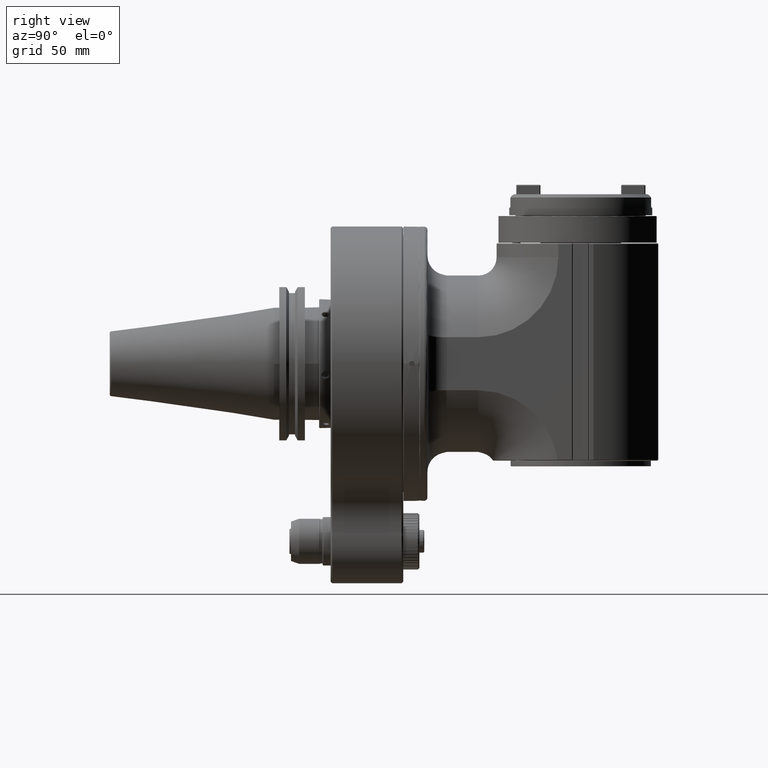
[diagram: clean part render]
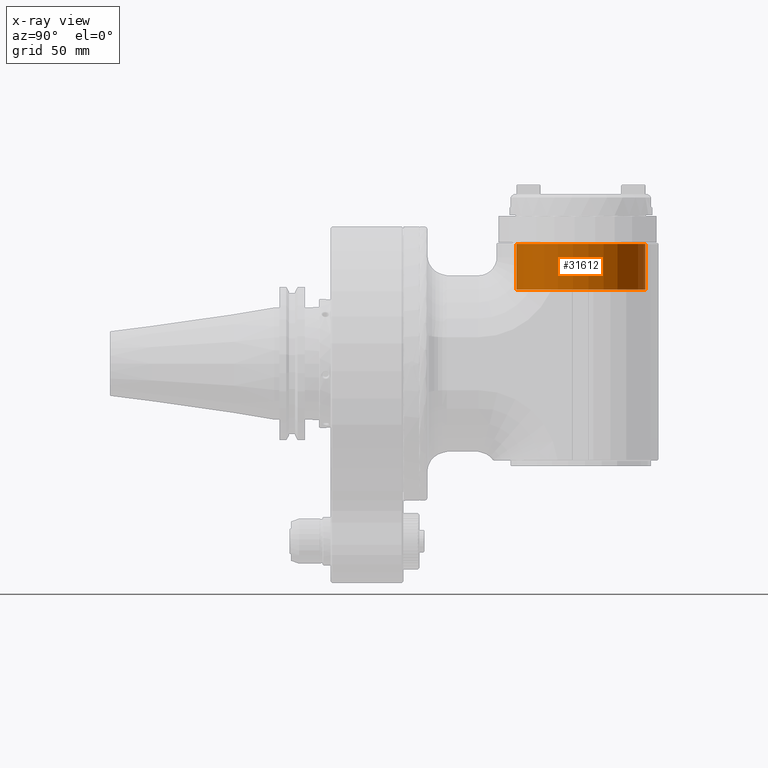
[diagram: x-ray — body ghosted, one internal face saturated and labeled with its STEP entity id]
A machine part, right view, then the same camera in x-ray: the body is ghosted and one INTERNAL B-rep face — a face not visible from any outside direction — is saturated and labeled: STEP entity #31612.
In plain terms, the highlighted cylindrical surface (bore or boss wall) has radius 40 mm, axis along (0, 0, 1).
Its self-contained STEP definition (entity closure, byte-faithful):
#2615=LINE('',#54256,#5421);
#5421=VECTOR('',#39904,40.);
#6791=CYLINDRICAL_SURFACE('',#33927,40.);
#8200=FACE_OUTER_BOUND('',#10184,.T.);
#10184=EDGE_LOOP('',(#24786,#24787,#24788,#24789,#24790));
#11741=CIRCLE('',#33925,40.);
#11742=CIRCLE('',#33926,40.);
#11743=CIRCLE('',#33928,40.);
#14104=VERTEX_POINT('',#54248);
#14105=VERTEX_POINT('',#54249);
#14106=VERTEX_POINT('',#54254);
#17923=EDGE_CURVE('',#14104,#14105,#11741,.T.);
#17924=EDGE_CURVE('',#14105,#14104,#11742,.T.);
#17926=EDGE_CURVE('',#14106,#14106,#11743,.T.);
#17927=EDGE_CURVE('',#14106,#14105,#2615,.T.);
#24786=ORIENTED_EDGE('',*,*,#17926,.F.);
#24787=ORIENTED_EDGE('',*,*,#17927,.T.);
#24788=ORIENTED_EDGE('',*,*,#17923,.F.);
#24789=ORIENTED_EDGE('',*,*,#17924,.F.);
#24790=ORIENTED_EDGE('',*,*,#17927,.F.);
#31612=ADVANCED_FACE('',(#8200),#6791,.F.);
#33925=AXIS2_PLACEMENT_3D('',#54250,#39895,#39896);
#33926=AXIS2_PLACEMENT_3D('',#54251,#39897,#39898);
#33927=AXIS2_PLACEMENT_3D('',#54253,#39900,#39901);
#33928=AXIS2_PLACEMENT_3D('',#54255,#39902,#39903);
#39895=DIRECTION('center_axis',(0.,0.,-1.));
#39896=DIRECTION('ref_axis',(0.,-1.,0.));
#39897=DIRECTION('center_axis',(0.,0.,-1.));
#39898=DIRECTION('ref_axis',(0.,-1.,0.));
#39900=DIRECTION('center_axis',(0.,0.,1.));
#39901=DIRECTION('ref_axis',(0.,1.,0.));
#39902=DIRECTION('center_axis',(0.,0.,1.));
#39903=DIRECTION('ref_axis',(0.,-1.,0.));
#39904=DIRECTION('',(0.,0.,1.));
#54248=CARTESIAN_POINT('',(0.,150.,74.2));
#54249=CARTESIAN_POINT('',(4.89858719658941E-15,70.,74.2));
#54250=CARTESIAN_POINT('Origin',(0.,110.,74.2));
#54251=CARTESIAN_POINT('Origin',(0.,110.,74.2));
#54253=CARTESIAN_POINT('Origin',(0.,110.,-66.735));
#54254=CARTESIAN_POINT('',(0.,70.,46.));
#54255=CARTESIAN_POINT('Origin',(0.,110.,46.));
#54256=CARTESIAN_POINT('',(4.89858719658941E-15,70.,-66.735));